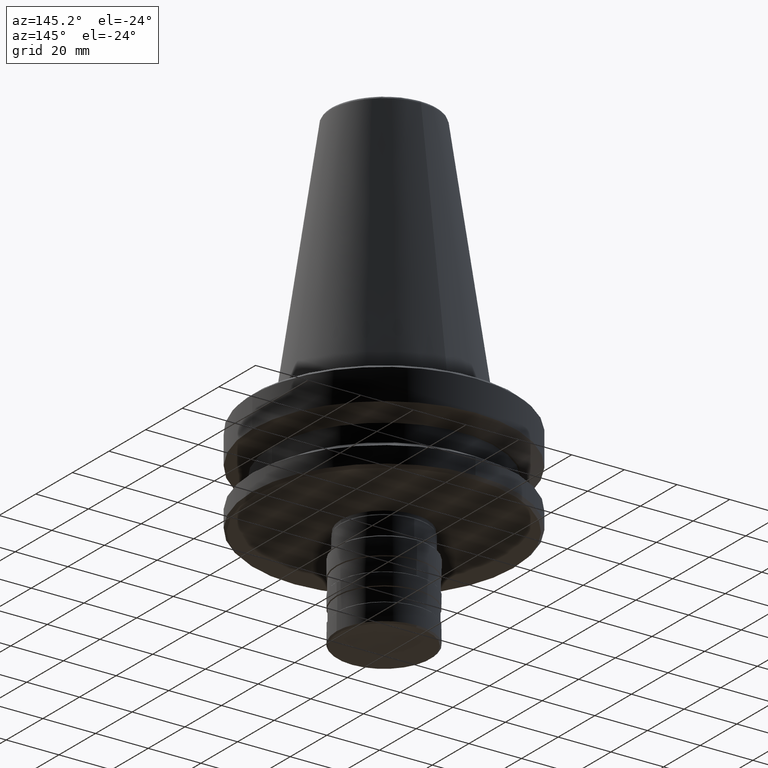
[diagram: clean part render]
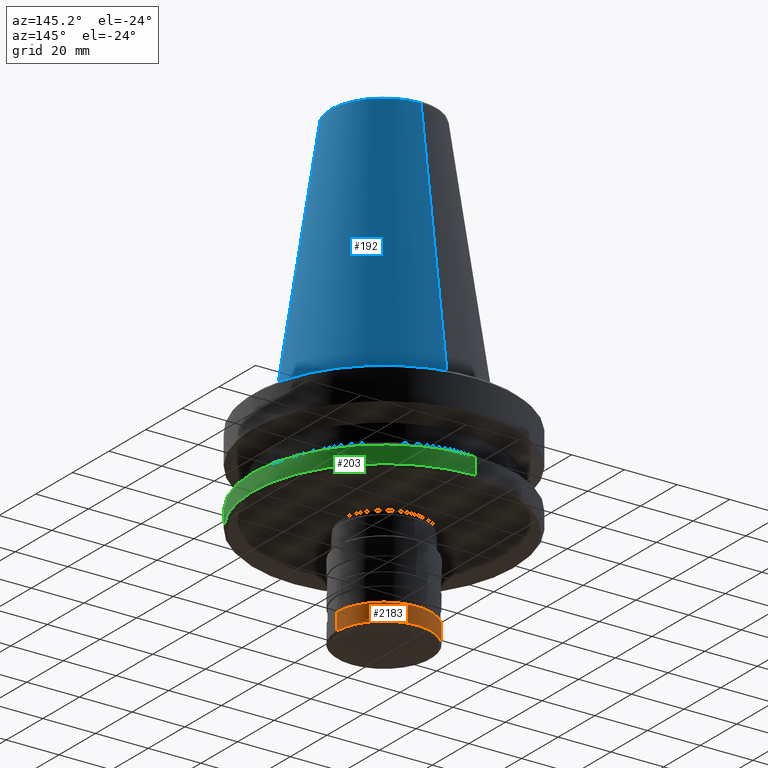
[diagram: same view with three faces highlighted in distinct colors, each labeled with its STEP entity id]
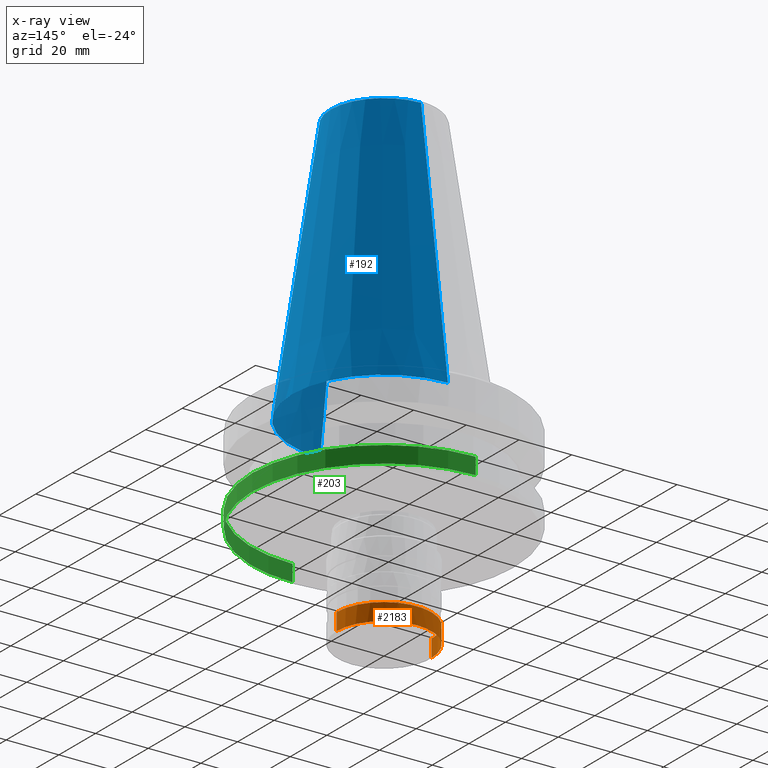
[diagram: x-ray of the same camera — body ghosted, the three highlighted faces saturated]
A machine part, auxiliary view with three faces highlighted in distinct colors.
The next image is the same camera in x-ray (body ghosted, the three faces saturated) — at least one of them is partly hidden behind the body in this view.
Their STEP definitions:

[orange] entity #2183 — the highlighted cylindrical surface (partial cylindrical patch) has radius 18 mm, axis along (0, 0, 1).
#21 = DIRECTION ( 'NONE',  ( -1.000000000000000000, 0.0000000000000000000, 0.0000000000000000000 ) ) ;
#25 = DIRECTION ( 'NONE',  ( -0.0000000000000000000, -0.0000000000000000000, 1.000000000000000000 ) ) ;
#29 = CARTESIAN_POINT ( 'NONE',  ( 0.0000000000000000000, 0.0000000000000000000, -70.00000000000000000 ) ) ;
#119 = CIRCLE ( 'NONE', #218, 18.00000000000000700 ) ;
#159 = DIRECTION ( 'NONE',  ( 1.000000000000000000, 0.0000000000000000000, 0.0000000000000000000 ) ) ;
#161 = DIRECTION ( 'NONE',  ( 0.0000000000000000000, 0.0000000000000000000, 1.000000000000000000 ) ) ;
#164 = CARTESIAN_POINT ( 'NONE',  ( 0.0000000000000000000, 0.0000000000000000000, -76.50000000000001400 ) ) ;
#209 = AXIS2_PLACEMENT_3D ( 'NONE', #29, #25, #21 ) ;
#218 = AXIS2_PLACEMENT_3D ( 'NONE', #164, #161, #159 ) ;
#263 = AXIS2_PLACEMENT_3D ( 'NONE', #538, #533, #530 ) ;
#290 = FACE_OUTER_BOUND ( 'NONE', #469, .T. ) ;
#292 = DIRECTION ( 'NONE',  ( 0.0000000000000000000, 0.0000000000000000000, 1.000000000000000000 ) ) ;
#312 = CARTESIAN_POINT ( 'NONE',  ( 18.00000000000000700, 0.0000000000000000000, -76.50000000000000000 ) ) ;
#316 = CARTESIAN_POINT ( 'NONE',  ( -18.00000000000000700, 2.204364238465236200E-015, -76.50000000000001400 ) ) ;
#364 = ORIENTED_EDGE ( 'NONE', *, *, #802, .T. ) ;
#452 = CIRCLE ( 'NONE', #263, 18.00000000000000700 ) ;
#453 = DIRECTION ( 'NONE',  ( 0.0000000000000000000, 0.0000000000000000000, 1.000000000000000000 ) ) ;
#466 = CARTESIAN_POINT ( 'NONE',  ( -18.00000000000000700, 2.204364238465236200E-015, -76.50000000000000000 ) ) ;
#469 = EDGE_LOOP ( 'NONE', ( #1143, #364, #1063, #1480, #965 ) ) ;
#530 = DIRECTION ( 'NONE',  ( 1.000000000000000000, 0.0000000000000000000, 0.0000000000000000000 ) ) ;
#533 = DIRECTION ( 'NONE',  ( 0.0000000000000000000, 0.0000000000000000000, 1.000000000000000000 ) ) ;
#538 = CARTESIAN_POINT ( 'NONE',  ( 0.0000000000000000000, 0.0000000000000000000, -76.50000000000001400 ) ) ;
#547 = LINE ( 'NONE', #466, #989 ) ;
#587 = CARTESIAN_POINT ( 'NONE',  ( -18.00000000000000700, 2.204364238465236200E-015, -70.00000000000000000 ) ) ;
#681 = VERTEX_POINT ( 'NONE', #587 ) ;
#802 = EDGE_CURVE ( 'NONE', #1033, #681, #547, .T. ) ;
#804 = AXIS2_PLACEMENT_3D ( 'NONE', #1163, #1169, #1195 ) ;
#961 = CARTESIAN_POINT ( 'NONE',  ( 18.00000000000000700, 0.0000000000000000000, -76.50000000000001400 ) ) ;
#965 = ORIENTED_EDGE ( 'NONE', *, *, #1093, .T. ) ;
#989 = VECTOR ( 'NONE', #453, 1000.000000000000000 ) ;
#1033 = VERTEX_POINT ( 'NONE', #316 ) ;
#1041 = EDGE_CURVE ( 'NONE', #1860, #2089, #1725, .T. ) ;
#1063 = ORIENTED_EDGE ( 'NONE', *, *, #1146, .F. ) ;
#1093 = EDGE_CURVE ( 'NONE', #1860, #1936, #119, .T. ) ;
#1143 = ORIENTED_EDGE ( 'NONE', *, *, #2282, .T. ) ;
#1146 = EDGE_CURVE ( 'NONE', #2089, #681, #1632, .T. ) ;
#1163 = CARTESIAN_POINT ( 'NONE',  ( 0.0000000000000000000, 0.0000000000000000000, -76.50000000000000000 ) ) ;
#1169 = DIRECTION ( 'NONE',  ( 0.0000000000000000000, 0.0000000000000000000, 1.000000000000000000 ) ) ;
#1195 = DIRECTION ( 'NONE',  ( 1.000000000000000000, 0.0000000000000000000, 0.0000000000000000000 ) ) ;
#1321 = CARTESIAN_POINT ( 'NONE',  ( 18.00000000000000700, 0.0000000000000000000, -70.00000000000000000 ) ) ;
#1456 = CARTESIAN_POINT ( 'NONE',  ( 2.204364238465235800E-015, 18.00000000000000000, -76.50000000000001400 ) ) ;
#1480 = ORIENTED_EDGE ( 'NONE', *, *, #1041, .F. ) ;
#1632 = CIRCLE ( 'NONE', #209, 18.00000000000000700 ) ;
#1725 = LINE ( 'NONE', #312, #2153 ) ;
#1858 = CYLINDRICAL_SURFACE ( 'NONE', #804, 18.00000000000000700 ) ;
#1860 = VERTEX_POINT ( 'NONE', #961 ) ;
#1936 = VERTEX_POINT ( 'NONE', #1456 ) ;
#2089 = VERTEX_POINT ( 'NONE', #1321 ) ;
#2153 = VECTOR ( 'NONE', #292, 1000.000000000000000 ) ;
#2183 = ADVANCED_FACE ( 'NONE', ( #290 ), #1858, .T. ) ;
#2282 = EDGE_CURVE ( 'NONE', #1936, #1033, #452, .T. ) ;

[blue] entity #192 — the highlighted conical surface has half-angle 8.297 deg.
#4 = VERTEX_POINT ( 'NONE', #1862 ) ;
#13 = CIRCLE ( 'NONE', #269, 20.20381605199999300 ) ;
#192 = ADVANCED_FACE ( 'NONE', ( #1887 ), #2230, .T. ) ;
#269 = AXIS2_PLACEMENT_3D ( 'NONE', #1018, #1015, #1012 ) ;
#465 = EDGE_CURVE ( 'NONE', #755, #4, #915, .T. ) ;
#475 = CARTESIAN_POINT ( 'NONE',  ( 4.277078946022131700E-015, -34.92500000000004000, 1.199480677166284000E-014 ) ) ;
#622 = DIRECTION ( 'NONE',  ( 1.767266086083724100E-017, -0.1443082272630906700, -0.9895327864927892000 ) ) ;
#625 = CARTESIAN_POINT ( 'NONE',  ( 4.277078946022131700E-015, -34.92500000000004000, 1.011182573551119800E-014 ) ) ;
#660 = EDGE_CURVE ( 'NONE', #2120, #755, #2240, .T. ) ;
#749 = ORIENTED_EDGE ( 'NONE', *, *, #2101, .T. ) ;
#755 = VERTEX_POINT ( 'NONE', #475 ) ;
#868 = DIRECTION ( 'NONE',  ( 0.0000000000000000000, 1.000000000000000000, -3.973597081693473100E-016 ) ) ;
#871 = DIRECTION ( 'NONE',  ( -0.0000000000000000000, 3.434447178715200600E-016, 1.000000000000000000 ) ) ;
#877 = ORIENTED_EDGE ( 'NONE', *, *, #465, .T. ) ;
#878 = CARTESIAN_POINT ( 'NONE',  ( 0.0000000000000000000, -3.466878945975778700E-014, 0.0000000000000000000 ) ) ;
#915 = CIRCLE ( 'NONE', #1401, 34.92500000000000400 ) ;
#1012 = DIRECTION ( 'NONE',  ( 0.0000000000000000000, 1.000000000000000000, 0.0000000000000000000 ) ) ;
#1015 = DIRECTION ( 'NONE',  ( 0.0000000000000000000, -3.434447178715200600E-016, -1.000000000000000000 ) ) ;
#1018 = CARTESIAN_POINT ( 'NONE',  ( 0.0000000000000000000, 1.848892746611746400E-029, 100.9443082270000600 ) ) ;
#1022 = EDGE_LOOP ( 'NONE', ( #749, #2228, #877, #2038, #1620 ) ) ;
#1113 = CARTESIAN_POINT ( 'NONE',  ( 3.375666405943206000E-015, -20.20381605199999000, 100.9443082270000600 ) ) ;
#1296 = DIRECTION ( 'NONE',  ( 0.0000000000000000000, 1.000000000000000000, 0.0000000000000000000 ) ) ;
#1297 = DIRECTION ( 'NONE',  ( 0.0000000000000000000, -3.434447178715200600E-016, -1.000000000000000000 ) ) ;
#1300 = CARTESIAN_POINT ( 'NONE',  ( 0.0000000000000000000, 1.848892746611746400E-029, 100.9443082270000600 ) ) ;
#1322 = LINE ( 'NONE', #1569, #2209 ) ;
#1401 = AXIS2_PLACEMENT_3D ( 'NONE', #878, #871, #868 ) ;
#1434 = CIRCLE ( 'NONE', #2162, 20.20381605199999000 ) ;
#1452 = CARTESIAN_POINT ( 'NONE',  ( 20.20381605190618400, -4.661857163611797700E-009, 100.9443082269864600 ) ) ;
#1466 = DIRECTION ( 'NONE',  ( 0.0000000000000000000, 0.1443082272630900300, -0.9895327864927893100 ) ) ;
#1534 = CARTESIAN_POINT ( 'NONE',  ( 0.0000000000000000000, 20.20381605199999300, 100.9443082270000600 ) ) ;
#1569 = CARTESIAN_POINT ( 'NONE',  ( 0.0000000000000000000, 34.92499999999996900, -1.387778780781445700E-014 ) ) ;
#1620 = ORIENTED_EDGE ( 'NONE', *, *, #2229, .T. ) ;
#1835 = DIRECTION ( 'NONE',  ( 0.0000000000000000000, -3.434447178715197200E-016, -1.000000000000000000 ) ) ;
#1844 = CARTESIAN_POINT ( 'NONE',  ( 0.0000000000000000000, -3.469446951953614200E-014, -1.882981036151629500E-015 ) ) ;
#1847 = VECTOR ( 'NONE', #622, 1000.000000000000100 ) ;
#1862 = CARTESIAN_POINT ( 'NONE',  ( 0.0000000000000000000, 34.92499999999996900, -1.199480677166284000E-014 ) ) ;
#1887 = FACE_OUTER_BOUND ( 'NONE', #1022, .T. ) ;
#1909 = VERTEX_POINT ( 'NONE', #1452 ) ;
#1927 = DIRECTION ( 'NONE',  ( 0.0000000000000000000, 1.000000000000000000, -3.434447178715197200E-016 ) ) ;
#1942 = EDGE_CURVE ( 'NONE', #1972, #4, #1322, .T. ) ;
#1972 = VERTEX_POINT ( 'NONE', #1534 ) ;
#2015 = AXIS2_PLACEMENT_3D ( 'NONE', #1844, #1835, #1927 ) ;
#2038 = ORIENTED_EDGE ( 'NONE', *, *, #1942, .F. ) ;
#2101 = EDGE_CURVE ( 'NONE', #1909, #2120, #1434, .T. ) ;
#2120 = VERTEX_POINT ( 'NONE', #1113 ) ;
#2162 = AXIS2_PLACEMENT_3D ( 'NONE', #1300, #1297, #1296 ) ;
#2209 = VECTOR ( 'NONE', #1466, 1000.000000000000200 ) ;
#2228 = ORIENTED_EDGE ( 'NONE', *, *, #660, .T. ) ;
#2229 = EDGE_CURVE ( 'NONE', #1972, #1909, #13, .T. ) ;
#2230 = CONICAL_SURFACE ( 'NONE', #2015, 34.92500000000000400, 0.1448138465431578200 ) ;
#2240 = LINE ( 'NONE', #625, #1847 ) ;

[green] entity #203 — the highlighted cylindrical surface (partial cylindrical patch) has radius 50 mm, axis along (0, -0, 1).
#49 = AXIS2_PLACEMENT_3D ( 'NONE', #1962, #1817, #1694 ) ;
#85 = ORIENTED_EDGE ( 'NONE', *, *, #1516, .F. ) ;
#90 = VERTEX_POINT ( 'NONE', #1952 ) ;
#137 = AXIS2_PLACEMENT_3D ( 'NONE', #1929, #1794, #2238 ) ;
#166 = CARTESIAN_POINT ( 'NONE',  ( 6.123233995736766100E-015, 50.00000000000000000, -30.67872878731442300 ) ) ;
#203 = ADVANCED_FACE ( 'NONE', ( #2185 ), #2172, .T. ) ;
#204 = LINE ( 'NONE', #1399, #1367 ) ;
#270 = VERTEX_POINT ( 'NONE', #1975 ) ;
#276 = AXIS2_PLACEMENT_3D ( 'NONE', #431, #428, #424 ) ;
#286 = AXIS2_PLACEMENT_3D ( 'NONE', #1211, #1206, #1199 ) ;
#424 = DIRECTION ( 'NONE',  ( 0.0000000000000000000, -1.000000000000000000, 0.0000000000000000000 ) ) ;
#428 = DIRECTION ( 'NONE',  ( 0.0000000000000000000, -6.938893903907228400E-017, 1.000000000000000000 ) ) ;
#431 = CARTESIAN_POINT ( 'NONE',  ( 0.0000000000000000000, -5.296307347064898600E-030, -36.99999999999992200 ) ) ;
#476 = CIRCLE ( 'NONE', #2016, 50.00000000000000000 ) ;
#522 = CARTESIAN_POINT ( 'NONE',  ( 50.00000000000000000, 6.123233995736766100E-015, -30.67872878731442300 ) ) ;
#537 = ORIENTED_EDGE ( 'NONE', *, *, #1429, .T. ) ;
#577 = CARTESIAN_POINT ( 'NONE',  ( 0.0000000000000000000, -50.00000000000000000, -36.99999999999992200 ) ) ;
#620 = CIRCLE ( 'NONE', #276, 50.00000000000000000 ) ;
#673 = VERTEX_POINT ( 'NONE', #577 ) ;
#722 = VERTEX_POINT ( 'NONE', #522 ) ;
#758 = ORIENTED_EDGE ( 'NONE', *, *, #2156, .F. ) ;
#819 = ORIENTED_EDGE ( 'NONE', *, *, #2207, .T. ) ;
#820 = ORIENTED_EDGE ( 'NONE', *, *, #2014, .F. ) ;
#924 = EDGE_CURVE ( 'NONE', #673, #1809, #620, .T. ) ;
#1014 = LINE ( 'NONE', #1857, #1648 ) ;
#1092 = CIRCLE ( 'NONE', #286, 50.00000000000000000 ) ;
#1121 = DIRECTION ( 'NONE',  ( 0.0000000000000000000, -6.938893903907228400E-017, 1.000000000000000000 ) ) ;
#1123 = DIRECTION ( 'NONE',  ( 0.0000000000000000000, -1.000000000000000000, 0.0000000000000000000 ) ) ;
#1124 = DIRECTION ( 'NONE',  ( 0.0000000000000000000, -6.938893903907228400E-017, 1.000000000000000000 ) ) ;
#1127 = CARTESIAN_POINT ( 'NONE',  ( 0.0000000000000000000, -5.296307347064898600E-030, -36.99999999999992200 ) ) ;
#1199 = DIRECTION ( 'NONE',  ( 1.000000000000000000, 0.0000000000000000000, 0.0000000000000000000 ) ) ;
#1206 = DIRECTION ( 'NONE',  ( -0.0000000000000000000, -0.0000000000000000000, 1.000000000000000000 ) ) ;
#1210 = ORIENTED_EDGE ( 'NONE', *, *, #924, .T. ) ;
#1211 = CARTESIAN_POINT ( 'NONE',  ( 0.0000000000000000000, 0.0000000000000000000, -30.67872878731442300 ) ) ;
#1367 = VECTOR ( 'NONE', #1121, 1000.000000000000000 ) ;
#1399 = CARTESIAN_POINT ( 'NONE',  ( 0.0000000000000000000, -50.00000000000000000, -37.00000000000000700 ) ) ;
#1429 = EDGE_CURVE ( 'NONE', #270, #1515, #1014, .T. ) ;
#1515 = VERTEX_POINT ( 'NONE', #166 ) ;
#1516 = EDGE_CURVE ( 'NONE', #90, #722, #2280, .T. ) ;
#1565 = CARTESIAN_POINT ( 'NONE',  ( 50.00000000000007800, 0.0000000000000000000, -36.99999999999992200 ) ) ;
#1634 = EDGE_LOOP ( 'NONE', ( #819, #537, #758, #85, #820, #1210 ) ) ;
#1648 = VECTOR ( 'NONE', #1740, 1000.000000000000000 ) ;
#1694 = DIRECTION ( 'NONE',  ( 1.000000000000000000, 0.0000000000000000000, 0.0000000000000000000 ) ) ;
#1740 = DIRECTION ( 'NONE',  ( 0.0000000000000000000, -6.938893903907228400E-017, 1.000000000000000000 ) ) ;
#1794 = DIRECTION ( 'NONE',  ( 0.0000000000000000000, -6.938893903907228400E-017, 1.000000000000000000 ) ) ;
#1809 = VERTEX_POINT ( 'NONE', #1565 ) ;
#1817 = DIRECTION ( 'NONE',  ( -0.0000000000000000000, -0.0000000000000000000, 1.000000000000000000 ) ) ;
#1857 = CARTESIAN_POINT ( 'NONE',  ( 6.123233995736766100E-015, 50.00000000000000000, -36.99999999999999300 ) ) ;
#1929 = CARTESIAN_POINT ( 'NONE',  ( 0.0000000000000000000, 0.0000000000000000000, -37.00000000000000000 ) ) ;
#1952 = CARTESIAN_POINT ( 'NONE',  ( 0.0000000000000000000, -50.00000000000000000, -30.67872878731442300 ) ) ;
#1962 = CARTESIAN_POINT ( 'NONE',  ( 0.0000000000000000000, 0.0000000000000000000, -30.67872878731442300 ) ) ;
#1975 = CARTESIAN_POINT ( 'NONE',  ( 6.123233995736766100E-015, 50.00000000000000000, -36.99999999999992200 ) ) ;
#2014 = EDGE_CURVE ( 'NONE', #673, #90, #204, .T. ) ;
#2016 = AXIS2_PLACEMENT_3D ( 'NONE', #1127, #1124, #1123 ) ;
#2156 = EDGE_CURVE ( 'NONE', #722, #1515, #1092, .T. ) ;
#2172 = CYLINDRICAL_SURFACE ( 'NONE', #137, 50.00000000000000000 ) ;
#2185 = FACE_OUTER_BOUND ( 'NONE', #1634, .T. ) ;
#2207 = EDGE_CURVE ( 'NONE', #1809, #270, #476, .T. ) ;
#2238 = DIRECTION ( 'NONE',  ( 0.0000000000000000000, -1.000000000000000000, -1.387778780781445700E-016 ) ) ;
#2280 = CIRCLE ( 'NONE', #49, 50.00000000000000000 ) ;